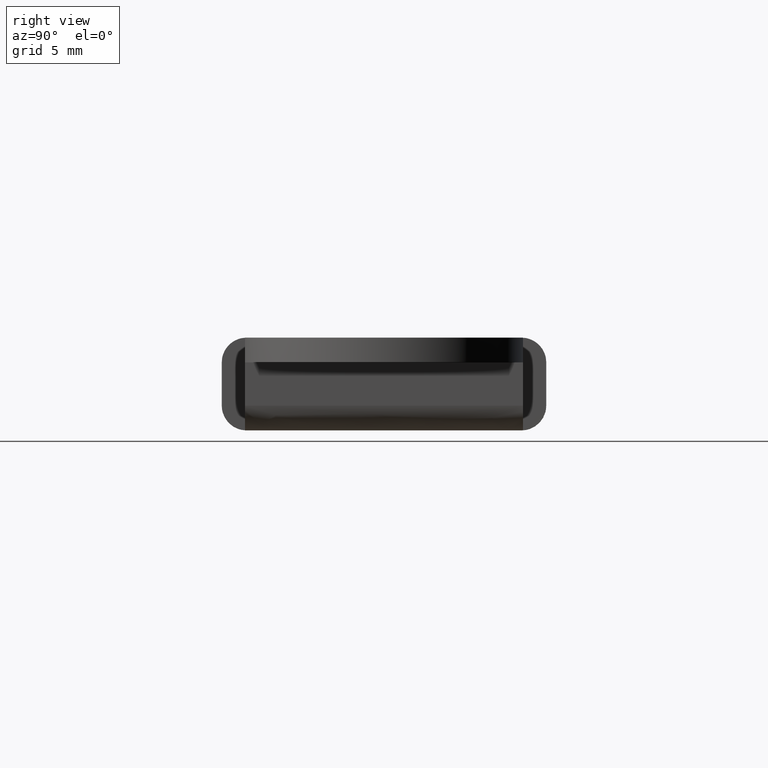
[diagram: clean part render]
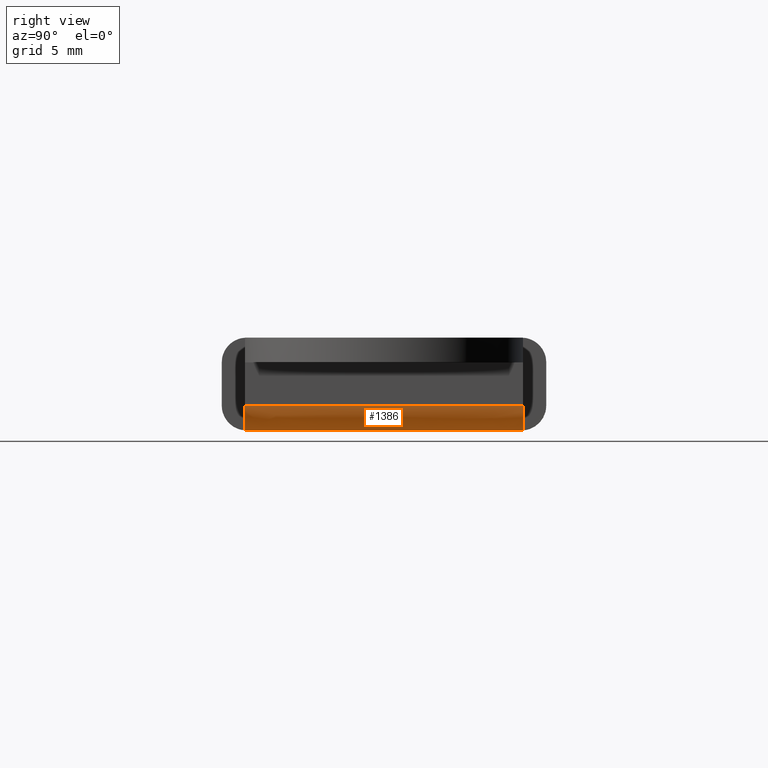
[diagram: same view with one face highlighted and labeled with its STEP entity id]
A machine part, right view. The second image highlights one B-rep face of the part: STEP entity #1386.
In plain terms, the highlighted face is a freeform B-spline surface patch.
Its self-contained STEP definition (entity closure, byte-faithful):
#1016=CARTESIAN_POINT('',(8.900000000000000,-8.900000000000000,0.0));
#1017=VERTEX_POINT('',#1016);
#1032=CARTESIAN_POINT('',(8.900000000000000,8.900000000000000,0.0));
#1033=VERTEX_POINT('',#1032);
#1039=CARTESIAN_POINT('',(8.900000000000000,8.900000000000000,0.0));
#1040=CARTESIAN_POINT('',(8.900000000000000,-8.900000000000000,0.0));
#1041=QUASI_UNIFORM_CURVE('',1,(#1039,#1040),.UNSPECIFIED.,.F.,.U.);
#1042=EDGE_CURVE('',#1033,#1017,#1041,.T.);
#1292=CARTESIAN_POINT('',(9.0,9.0,0.003128057732868));
#1293=VERTEX_POINT('',#1292);
#1299=CARTESIAN_POINT('',(9.0,9.0,0.003128057732868));
#1300=CARTESIAN_POINT('',(8.966689246886809,8.966689246886809,0.001042629673426));
#1301=CARTESIAN_POINT('',(8.933343583870141,8.933343583870141,-0.000000437118788));
#1302=CARTESIAN_POINT('',(8.900000000000000,8.900000000000000,0.0));
#1303=B_SPLINE_CURVE_WITH_KNOTS('',3,(#1299,#1300,#1301,#1302),.UNSPECIFIED.,.F.,.U.,(4,4),(2.205890E-011,0.141468207102492),.UNSPECIFIED.);
#1304=EDGE_CURVE('',#1293,#1033,#1303,.T.);
#1324=CARTESIAN_POINT('',(10.499451719960890,9.450000000000001,1.641883117292599));
#1325=CARTESIAN_POINT('',(10.499451719960890,-9.461250000000000,1.641883117292599));
#1326=CARTESIAN_POINT('',(10.545159121913585,9.450000000000001,-0.103612141750590));
#1327=CARTESIAN_POINT('',(10.545159121913585,-9.461250000000000,-0.103612141750590));
#1328=CARTESIAN_POINT('',(8.802322336744229,9.450000000000001,0.002984322525013));
#1329=CARTESIAN_POINT('',(8.802322336744229,-9.461250000000000,0.002984322525013));
#1337=(BOUNDED_SURFACE()B_SPLINE_SURFACE(1,2,((#1324,#1326,#1328),(#1325,#1327,#1329)),.UNSPECIFIED.,.F.,.F.,.U.)B_SPLINE_SURFACE_WITH_KNOTS((2,2),(3,3),(0.0,18.911249999999999),(0.0,2.816067397707736),.UNSPECIFIED.)GEOMETRIC_REPRESENTATION_ITEM()RATIONAL_B_SPLINE_SURFACE(((1.0,0.675590207615660,1.0),(1.0,0.675590207615660,1.0)))REPRESENTATION_ITEM('')SURFACE());
#1338=CARTESIAN_POINT('',(9.0,-9.0,0.003128057732868));
#1339=VERTEX_POINT('',#1338);
#1340=CARTESIAN_POINT('',(9.0,-9.0,0.003128057732868));
#1341=CARTESIAN_POINT('',(8.966689039689678,-8.966689039689678,0.001042627990535));
#1342=CARTESIAN_POINT('',(8.933343376823027,-8.933343376823027,-0.000000448393696));
#1343=CARTESIAN_POINT('',(8.900000000000000,-8.900000000000000,0.0));
#1344=B_SPLINE_CURVE_WITH_KNOTS('',3,(#1340,#1341,#1342,#1343),.UNSPECIFIED.,.F.,.U.,(4,4),(2.205890E-011,0.141468207102492),.UNSPECIFIED.);
#1345=EDGE_CURVE('',#1339,#1017,#1344,.T.);
#1346=ORIENTED_EDGE('',*,*,#1345,.T.);
#1347=ORIENTED_EDGE('',*,*,#1042,.F.);
#1348=ORIENTED_EDGE('',*,*,#1304,.F.);
#1349=CARTESIAN_POINT('',(10.500000000000000,9.0,1.600000000000000));
#1350=VERTEX_POINT('',#1349);
#1351=CARTESIAN_POINT('',(10.500000000000000,9.0,1.600000000000000));
#1352=CARTESIAN_POINT('',(10.500044584175001,9.000000000000020,1.461738903028943));
#1353=CARTESIAN_POINT('',(10.474584200680081,9.0,1.266947166857592));
#1354=CARTESIAN_POINT('',(10.375990782151209,9.000000000000018,0.961500141517114));
#1355=CARTESIAN_POINT('',(10.249593843859550,8.999999999999968,0.720540794865799));
#1356=CARTESIAN_POINT('',(10.054458553779840,9.000000000000039,0.480966957361361));
#1357=CARTESIAN_POINT('',(9.807098668055973,8.999999999999984,0.265459134725259));
#1358=CARTESIAN_POINT('',(9.455035411024941,8.999999999999998,0.076495663245820));
#1359=CARTESIAN_POINT('',(9.156812395816179,9.000000000000020,0.012887686675390));
#1360=CARTESIAN_POINT('',(9.0,9.0,0.003128057732868));
#1361=B_SPLINE_CURVE_WITH_KNOTS('',3,(#1351,#1352,#1353,#1354,#1355,#1356,#1357,#1358,#1359,#1360),.UNSPECIFIED.,.F.,.U.,(4,1,1,1,1,1,1,4),(0.000000046047087,0.414768542659332,0.584452191956664,0.961528215514856,1.225449530515789,1.508261816087562,1.941891655808775,2.413222864189739),.UNSPECIFIED.);
#1362=EDGE_CURVE('',#1350,#1293,#1361,.T.);
#1363=ORIENTED_EDGE('',*,*,#1362,.F.);
#1364=CARTESIAN_POINT('',(10.500000000000000,-9.0,1.600000000000000));
#1365=VERTEX_POINT('',#1364);
#1366=CARTESIAN_POINT('',(10.500000000000000,-9.0,1.600000000000000));
#1367=CARTESIAN_POINT('',(10.500000000000000,9.0,1.600000000000000));
#1368=QUASI_UNIFORM_CURVE('',1,(#1366,#1367),.UNSPECIFIED.,.F.,.U.);
#1369=EDGE_CURVE('',#1365,#1350,#1368,.T.);
#1370=ORIENTED_EDGE('',*,*,#1369,.F.);
#1371=CARTESIAN_POINT('',(9.0,-9.0,0.003128057732868));
#1372=CARTESIAN_POINT('',(9.181921000673178,-9.000000000000021,0.014389978721482));
#1373=CARTESIAN_POINT('',(9.436198149398059,-8.999999999999963,0.075037749505367));
#1374=CARTESIAN_POINT('',(9.733136470746317,-9.000000000000046,0.227781971797285));
#1375=CARTESIAN_POINT('',(9.933629531329107,-8.999999999999988,0.369804653524950));
#1376=CARTESIAN_POINT('',(10.127355445441591,-9.000000000000021,0.559706217407553));
#1377=CARTESIAN_POINT('',(10.327085850726981,-9.000000000000021,0.843702510499306));
#1378=CARTESIAN_POINT('',(10.467273894252170,-8.999999999999941,1.197797498994978));
#1379=CARTESIAN_POINT('',(10.500022445063710,-9.000000000000071,1.474313765835321));
#1380=CARTESIAN_POINT('',(10.500000000000000,-9.0,1.600000000000000));
#1381=B_SPLINE_CURVE_WITH_KNOTS('',3,(#1371,#1372,#1373,#1374,#1375,#1376,#1377,#1378,#1379,#1380),.UNSPECIFIED.,.F.,.U.,(4,1,1,1,1,1,1,4),(0.000000046043096,0.546744999534122,0.772986752913208,0.999234227720784,1.282012945599189,1.583672058382141,2.036162261301993,2.413222864189756),.UNSPECIFIED.);
#1382=EDGE_CURVE('',#1339,#1365,#1381,.T.);
#1383=ORIENTED_EDGE('',*,*,#1382,.F.);
#1384=EDGE_LOOP('',(#1346,#1347,#1348,#1363,#1370,#1383));
#1385=FACE_OUTER_BOUND('',#1384,.T.);
#1386=ADVANCED_FACE('',(#1385),#1337,.T.);